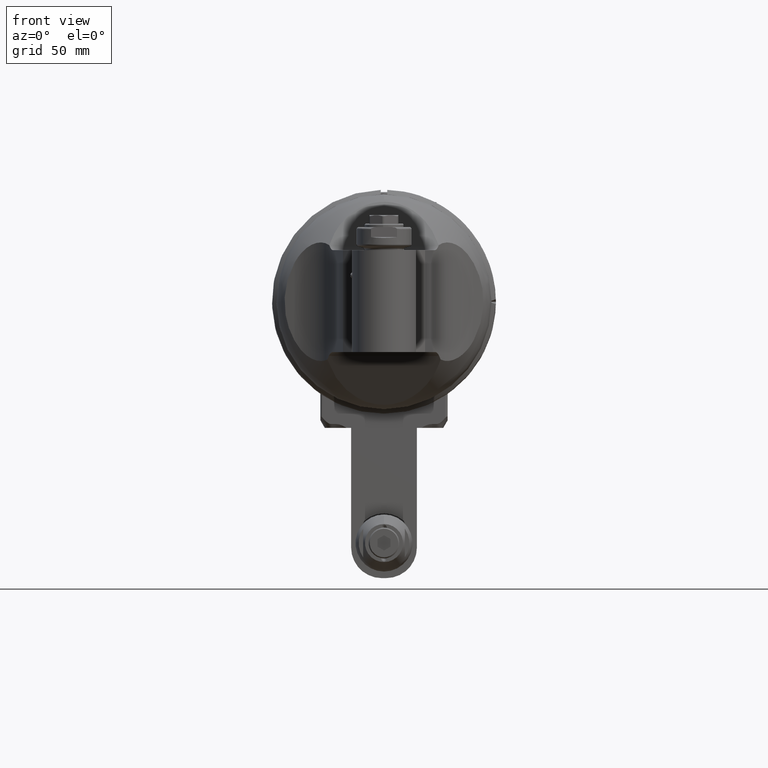
[diagram: clean part render]
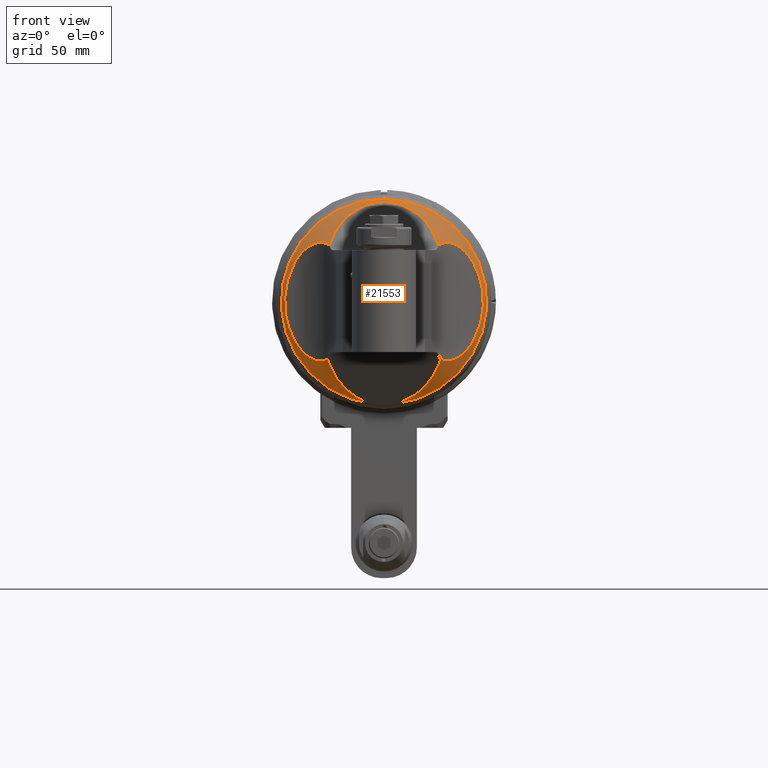
[diagram: same view with one face highlighted and labeled with its STEP entity id]
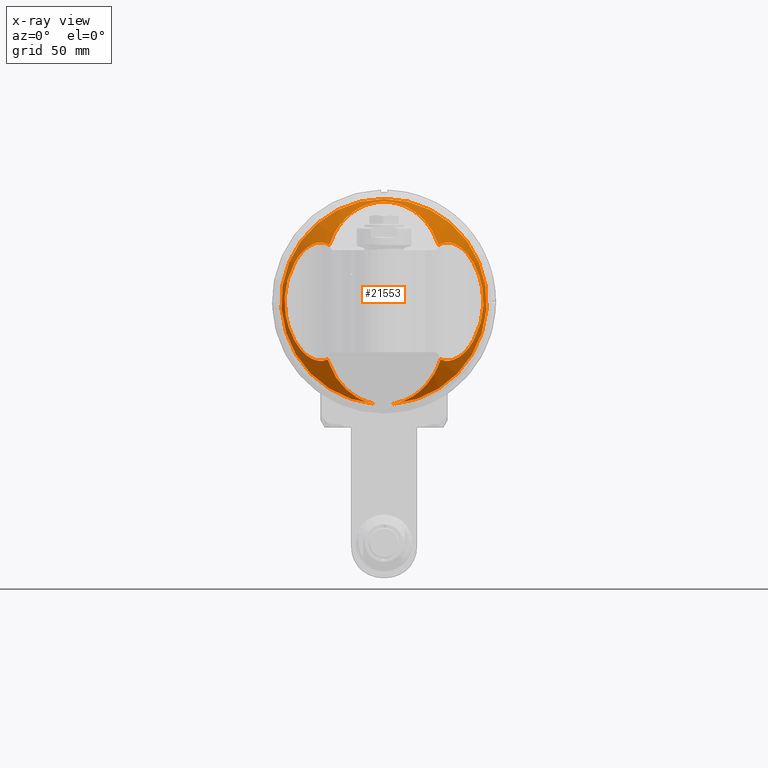
[diagram: x-ray of the same camera — body ghosted, the highlighted face saturated]
A machine part, front view. The second image highlights one B-rep face of the part: STEP entity #21553.
The next image is the same camera in x-ray: the body ghosted, the highlighted face saturated — about 0% of this face is hidden behind the body in this view.
In plain terms, the highlighted conical surface has half-angle 35 deg.
Its self-contained STEP definition (entity closure, byte-faithful):
#8532=CARTESIAN_POINT('',(0.E0,9.690066823034E1,0.E0));
#8533=DIRECTION('',(0.E0,1.E0,0.E0));
#8534=DIRECTION('',(-9.073475048637E-2,0.E0,-9.958750951069E-1));
#8535=AXIS2_PLACEMENT_3D('',#8532,#8533,#8534);
#8555=CARTESIAN_POINT('',(0.E0,9.690066823034E1,0.E0));
#8556=DIRECTION('',(0.E0,1.E0,0.E0));
#8557=DIRECTION('',(0.E0,0.E0,1.E0));
#8558=AXIS2_PLACEMENT_3D('',#8555,#8556,#8557);
#8560=CARTESIAN_POINT('',(4.249092444111E0,9.690066823034E1,-4.663665595912E1));
#8561=CARTESIAN_POINT('',(5.030448431946E0,9.680248086063E1,-4.649642986279E1));
#8562=CARTESIAN_POINT('',(6.517121420075E0,9.656070736877E1,-4.615114153230E1));
#8563=CARTESIAN_POINT('',(9.246733394353E0,9.593164004109E1,-4.525274028218E1));
#8564=CARTESIAN_POINT('',(1.227895160857E1,9.491854985333E1,-4.380589754987E1));
#8565=CARTESIAN_POINT('',(1.545051026041E1,9.342395965614E1,-4.167140153887E1));
#8566=CARTESIAN_POINT('',(1.822618219256E1,9.169300698534E1,-3.919934493229E1));
#8567=CARTESIAN_POINT('',(2.064616095909E1,8.974968923054E1,-3.642399955431E1));
#8568=CARTESIAN_POINT('',(2.272930497598E1,8.760526572841E1,-3.336144540413E1));
#8569=CARTESIAN_POINT('',(2.447852888964E1,8.526147665611E1,-3.001416771230E1));
#8570=CARTESIAN_POINT('',(2.541380374861E1,8.356110802432E1,-2.758578964008E1));
#8571=CARTESIAN_POINT('',(2.581853261668E1,8.267336442076E1,-2.631796038216E1));
#8581=CARTESIAN_POINT('',(-2.581853261668E1,8.267336442076E1,
-2.631796038216E1));
#8582=CARTESIAN_POINT('',(-2.541380374861E1,8.356110802431E1,
-2.758578964007E1));
#8583=CARTESIAN_POINT('',(-2.447852888965E1,8.526147665609E1,
-3.001416771227E1));
#8584=CARTESIAN_POINT('',(-2.272930497602E1,8.760526572837E1,
-3.336144540408E1));
#8585=CARTESIAN_POINT('',(-2.064616095914E1,8.974968923049E1,
-3.642399955424E1));
#8586=CARTESIAN_POINT('',(-1.822618219264E1,9.169300698528E1,
-3.919934493220E1));
#8587=CARTESIAN_POINT('',(-1.545051026052E1,9.342395965608E1,
-4.167140153878E1));
#8588=CARTESIAN_POINT('',(-1.227895160872E1,9.491854985327E1,
-4.380589754979E1));
#8589=CARTESIAN_POINT('',(-9.246733394536E0,9.593164004104E1,
-4.525274028210E1));
#8590=CARTESIAN_POINT('',(-6.517121420290E0,9.656070736873E1,
-4.615114153224E1));
#8591=CARTESIAN_POINT('',(-5.030448432179E0,9.680248086060E1,
-4.649642986274E1));
#8592=CARTESIAN_POINT('',(-4.249092444353E0,9.690066823031E1,
-4.663665595908E1));
#8598=CARTESIAN_POINT('',(2.494381098088E1,8.123576313169E1,2.576485296668E1));
#8603=CARTESIAN_POINT('',(4.085173814904E1,9.356092673678E1,1.762419830510E1));
#8604=CARTESIAN_POINT('',(4.062562835073E1,9.350034079892E1,1.804121218561E1));
#8605=CARTESIAN_POINT('',(4.016706095814E1,9.337090226071E1,1.883740159886E1));
#8606=CARTESIAN_POINT('',(3.946804620323E1,9.315234458695E1,1.992194011385E1));
#8607=CARTESIAN_POINT('',(3.876513018210E1,9.291043229617E1,2.090124374299E1));
#8608=CARTESIAN_POINT('',(3.806015324157E1,9.264487401504E1,2.178588504741E1));
#8609=CARTESIAN_POINT('',(3.735711723502E1,9.235636454568E1,2.258138469142E1));
#8610=CARTESIAN_POINT('',(3.666082460929E1,9.204650866417E1,2.329208150661E1));
#8611=CARTESIAN_POINT('',(3.596979431870E1,9.171434837636E1,2.392754254313E1));
#8612=CARTESIAN_POINT('',(3.528583152421E1,9.136029901221E1,2.449232186675E1));
#8613=CARTESIAN_POINT('',(3.461175494974E1,9.098564310621E1,2.498992175326E1));
#8614=CARTESIAN_POINT('',(3.394491254279E1,9.058864162784E1,2.542703523385E1));
#8615=CARTESIAN_POINT('',(3.328479021329E1,9.016834056413E1,2.580731231949E1));
#8616=CARTESIAN_POINT('',(3.263353842995E1,8.972549469027E1,2.613245346057E1));
#8617=CARTESIAN_POINT('',(3.199045679311E1,8.925904635786E1,2.640542006056E1));
#8618=CARTESIAN_POINT('',(3.135237207576E1,8.876558101386E1,2.662902997523E1));
#8619=CARTESIAN_POINT('',(3.072173817698E1,8.824557199806E1,2.680326906221E1));
#8620=CARTESIAN_POINT('',(3.010026279669E1,8.769926274424E1,2.692875301393E1));
#8621=CARTESIAN_POINT('',(2.948373605846E1,8.712120800990E1,2.700652129890E1));
#8622=CARTESIAN_POINT('',(2.887290042658E1,8.650952637712E1,2.703557547442E1));
#8623=CARTESIAN_POINT('',(2.826947869233E1,8.586327745621E1,2.701483691901E1));
#8624=CARTESIAN_POINT('',(2.767184461742E1,8.517729136864E1,2.694238138954E1));
#8625=CARTESIAN_POINT('',(2.708517657687E1,8.445354976140E1,2.681640369010E1));
#8626=CARTESIAN_POINT('',(2.651588258846E1,8.369686832659E1,2.663677536387E1));
#8627=CARTESIAN_POINT('',(2.596615701488E1,8.290750943405E1,2.640302194331E1));
#8628=CARTESIAN_POINT('',(2.543881765055E1,8.208658621264E1,2.611472348622E1));
#8629=CARTESIAN_POINT('',(2.510570374618E1,8.152232415458E1,2.588739950966E1));
#8630=CARTESIAN_POINT('',(2.494381098088E1,8.123576313169E1,2.576485296668E1));
#8636=CARTESIAN_POINT('',(2.581853261668E1,8.267336442075E1,-2.631796038215E1));
#8637=CARTESIAN_POINT('',(2.600089675383E1,8.295232952852E1,-2.641269161959E1));
#8638=CARTESIAN_POINT('',(2.637224144555E1,8.349697102564E1,-2.658216944061E1));
#8639=CARTESIAN_POINT('',(2.694642496076E1,8.427455907316E1,-2.677829097124E1));
#8640=CARTESIAN_POINT('',(2.753306631864E1,8.501089646185E1,-2.691774919230E1));
#8641=CARTESIAN_POINT('',(2.813210339830E1,8.570998776708E1,-2.700307377172E1));
#8642=CARTESIAN_POINT('',(2.874159900251E1,8.637278381847E1,-2.703555285368E1));
#8643=CARTESIAN_POINT('',(2.935712167200E1,8.699785930198E1,-2.701670539656E1));
#8644=CARTESIAN_POINT('',(2.998006550066E1,8.758967646447E1,-2.694786308371E1));
#8645=CARTESIAN_POINT('',(3.061025607780E1,8.815027815417E1,-2.682939566671E1));
#8646=CARTESIAN_POINT('',(3.124520293899E1,8.867962495870E1,-2.666205431091E1));
#8647=CARTESIAN_POINT('',(3.188815701959E1,8.918217200666E1,-2.644463990745E1));
#8648=CARTESIAN_POINT('',(3.253937923764E1,8.965918331639E1,-2.617561321104E1));
#8649=CARTESIAN_POINT('',(3.319626527862E1,9.010991154888E1,-2.585455900659E1));
#8650=CARTESIAN_POINT('',(3.386175343272E1,9.053732861224E1,-2.547798849800E1));
#8651=CARTESIAN_POINT('',(3.453665635326E1,9.094239002656E1,-2.504210227726E1));
#8652=CARTESIAN_POINT('',(3.521808374373E1,9.132391309252E1,-2.454514738025E1));
#8653=CARTESIAN_POINT('',(3.590844376967E1,9.168373297017E1,-2.398099903544E1));
#8654=CARTESIAN_POINT('',(3.660784111553E1,9.202203295628E1,-2.334351111758E1));
#8655=CARTESIAN_POINT('',(3.731250168742E1,9.233733652051E1,-2.262946021255E1));
#8656=CARTESIAN_POINT('',(3.802362525016E1,9.263057313999E1,-2.182963190669E1));
#8657=CARTESIAN_POINT('',(3.873793428628E1,9.290072067110E1,-2.093753319969E1));
#8658=CARTESIAN_POINT('',(3.944999363875E1,9.314650611028E1,-1.994888613380E1));
#8659=CARTESIAN_POINT('',(4.015808411085E1,9.336832373480E1,-1.885265644380E1));
#8660=CARTESIAN_POINT('',(4.062268781233E1,9.349955288403E1,-1.804663541491E1));
#8661=CARTESIAN_POINT('',(4.085173814823E1,9.356092673656E1,-1.762419830655E1));
#8950=CARTESIAN_POINT('',(-4.085173814931E1,9.356092673687E1,
-1.762419830494E1));
#8951=CARTESIAN_POINT('',(-4.062269592271E1,9.349955505721E1,
-1.804662045753E1));
#8952=CARTESIAN_POINT('',(-4.015810723959E1,9.336833047069E1,
-1.885261771234E1));
#8953=CARTESIAN_POINT('',(-3.945002554676E1,9.314651652932E1,
-1.994883899385E1));
#8954=CARTESIAN_POINT('',(-3.873798042714E1,9.290073709399E1,
-2.093747143629E1));
#8955=CARTESIAN_POINT('',(-3.802368956461E1,9.263059858908E1,
-2.182955585095E1));
#8956=CARTESIAN_POINT('',(-3.731254812251E1,9.233735656941E1,
-2.262941096585E1));
#8957=CARTESIAN_POINT('',(-3.660789908355E1,9.202205971110E1,
-2.334345480346E1));
#8958=CARTESIAN_POINT('',(-3.590849652289E1,9.168376000809E1,
-2.398095484398E1));
#8959=CARTESIAN_POINT('',(-3.521808795017E1,9.132391541946E1,
-2.454514425932E1));
#8960=CARTESIAN_POINT('',(-3.453670635980E1,9.094241830822E1,
-2.504206645186E1));
#8961=CARTESIAN_POINT('',(-3.386181310590E1,9.053736620203E1,
-2.547795340376E1));
#8962=CARTESIAN_POINT('',(-3.319627790244E1,9.010992005436E1,
-2.585455257305E1));
#8963=CARTESIAN_POINT('',(-3.253942815670E1,8.965921735078E1,
-2.617559011358E1));
#8964=CARTESIAN_POINT('',(-3.188820200295E1,8.918220699226E1,
-2.644462446661E1));
#8965=CARTESIAN_POINT('',(-3.124518104170E1,8.867960762763E1,
-2.666206138684E1));
#8966=CARTESIAN_POINT('',(-3.061027770834E1,8.815029555518E1,
-2.682938911873E1));
#8967=CARTESIAN_POINT('',(-2.998012389436E1,8.758973017173E1,
-2.694785440365E1));
#8968=CARTESIAN_POINT('',(-2.935716725347E1,8.699790368741E1,
-2.701670170976E1));
#8969=CARTESIAN_POINT('',(-2.874169598035E1,8.637288438822E1,
-2.703555237433E1));
#8970=CARTESIAN_POINT('',(-2.813221929925E1,8.571011866234E1,
-2.700308546336E1));
#8971=CARTESIAN_POINT('',(-2.753314978836E1,8.501099809471E1,
-2.691776569338E1));
#8972=CARTESIAN_POINT('',(-2.694649724561E1,8.427465368575E1,
-2.677831225644E1));
#8973=CARTESIAN_POINT('',(-2.637228470981E1,8.349703329590E1,
-2.658218800111E1));
#8974=CARTESIAN_POINT('',(-2.600091224224E1,8.295235322138E1,
-2.641269966524E1));
#8975=CARTESIAN_POINT('',(-2.581853261668E1,8.267336442076E1,
-2.631796038216E1));
#8981=CARTESIAN_POINT('',(-2.494381098088E1,8.123576313169E1,2.576485296668E1));
#8982=CARTESIAN_POINT('',(-2.510567270018E1,8.152226920108E1,2.588737600904E1));
#8983=CARTESIAN_POINT('',(-2.543872220432E1,8.208642643110E1,2.611466019256E1));
#8984=CARTESIAN_POINT('',(-2.596594506380E1,8.290718901808E1,2.640291558184E1));
#8985=CARTESIAN_POINT('',(-2.651557610679E1,8.369644136446E1,2.663665838162E1));
#8986=CARTESIAN_POINT('',(-2.708473298944E1,8.445297853782E1,2.681628288882E1));
#8987=CARTESIAN_POINT('',(-2.767133975910E1,8.517669160509E1,2.694229781063E1));
#8988=CARTESIAN_POINT('',(-2.826903749528E1,8.586279063559E1,2.701480533306E1));
#8989=CARTESIAN_POINT('',(-2.887251392174E1,8.650912719959E1,2.703557933544E1));
#8990=CARTESIAN_POINT('',(-2.948339770344E1,8.712088220479E1,2.700655322826E1));
#8991=CARTESIAN_POINT('',(-3.010002899218E1,8.769905189523E1,2.692879318469E1));
#8992=CARTESIAN_POINT('',(-3.072150211219E1,8.824537015049E1,2.680332432406E1));
#8993=CARTESIAN_POINT('',(-3.135208486486E1,8.876535134202E1,2.662911943076E1));
#8994=CARTESIAN_POINT('',(-3.199021083962E1,8.925886411394E1,2.640551835780E1));
#8995=CARTESIAN_POINT('',(-3.263340814951E1,8.972540342561E1,2.613251398398E1));
#8996=CARTESIAN_POINT('',(-3.328456751321E1,9.016819251342E1,2.580742927589E1));
#8997=CARTESIAN_POINT('',(-3.394468248691E1,9.058850157957E1,2.542717986920E1));
#8998=CARTESIAN_POINT('',(-3.461166043486E1,9.098558918881E1,2.498998849956E1));
#8999=CARTESIAN_POINT('',(-3.528564768924E1,9.136019898966E1,2.449246229908E1));
#9000=CARTESIAN_POINT('',(-3.596957728636E1,9.171424061724E1,2.392773298949E1));
#9001=CARTESIAN_POINT('',(-3.666066846808E1,9.204643679918E1,2.329223384397E1));
#9002=CARTESIAN_POINT('',(-3.735694109900E1,9.235628879081E1,2.258157245407E1));
#9003=CARTESIAN_POINT('',(-3.805996700166E1,9.264480120318E1,2.178610847495E1));
#9004=CARTESIAN_POINT('',(-3.876501089860E1,9.291038989889E1,2.090140372140E1));
#9005=CARTESIAN_POINT('',(-3.946794951377E1,9.315231302798E1,1.992208305867E1));
#9006=CARTESIAN_POINT('',(-4.016699960341E1,9.337088452229E1,1.883750509310E1));
#9007=CARTESIAN_POINT('',(-4.062560663038E1,9.350033497897E1,1.804125224440E1));
#9008=CARTESIAN_POINT('',(-4.085173814904E1,9.356092673678E1,1.762419830511E1));
#9053=CARTESIAN_POINT('',(-4.085173814786E1,9.356092673646E1,1.762419830723E1));
#9054=CARTESIAN_POINT('',(-4.164807533483E1,9.377430464261E1,1.615551511492E1));
#9055=CARTESIAN_POINT('',(-4.298745689670E1,9.413319085047E1,1.321814873031E1));
#9056=CARTESIAN_POINT('',(-4.435783893291E1,9.450038361040E1,8.812099153406E0));
#9057=CARTESIAN_POINT('',(-4.515675684573E1,9.471445301996E1,4.406049576504E0));
#9058=CARTESIAN_POINT('',(-4.541943562241E1,9.478483758604E1,
-3.912805635053E-10));
#9059=CARTESIAN_POINT('',(-4.515675684564E1,9.471445301993E1,
-4.406049577281E0));
#9060=CARTESIAN_POINT('',(-4.435783893273E1,9.450038361035E1,
-8.812099154165E0));
#9061=CARTESIAN_POINT('',(-4.298745689642E1,9.413319085040E1,
-1.321814873104E1));
#9062=CARTESIAN_POINT('',(-4.164807533449E1,9.377430464252E1,
-1.615551511562E1));
#9063=CARTESIAN_POINT('',(-4.085173814749E1,9.356092673636E1,
-1.762419830791E1));
#9065=CARTESIAN_POINT('',(2.494381098088E1,8.123576313169E1,2.576485296668E1));
#9066=CARTESIAN_POINT('',(2.468397961649E1,8.179038445934E1,2.655693431026E1));
#9067=CARTESIAN_POINT('',(2.416431688772E1,8.276562432251E1,2.794972117695E1));
#9068=CARTESIAN_POINT('',(2.338482279457E1,8.399279522989E1,2.970230286225E1));
#9069=CARTESIAN_POINT('',(2.260532870142E1,8.505635908145E1,3.122122945691E1));
#9070=CARTESIAN_POINT('',(2.156600324388E1,8.631166721412E1,3.301399526442E1));
#9071=CARTESIAN_POINT('',(2.026684642196E1,8.764264142922E1,3.491482343675E1));
#9072=CARTESIAN_POINT('',(1.870785823566E1,8.897751755566E1,3.682122411597E1));
#9073=CARTESIAN_POINT('',(1.714887004935E1,9.011136389608E1,3.844052450699E1));
#9074=CARTESIAN_POINT('',(1.507021913428E1,9.140658600784E1,4.029029338419E1));
#9075=CARTESIAN_POINT('',(1.247190549044E1,9.268621112774E1,4.211778744855E1));
#9076=CARTESIAN_POINT('',(9.353929117828E0,9.380251194768E1,4.371203023946E1));
#9077=CARTESIAN_POINT('',(6.235952745219E0,9.456395985625E1,4.479949055234E1));
#9078=CARTESIAN_POINT('',(3.117976372609E0,9.500807459994E1,4.543375213830E1));
#9079=CARTESIAN_POINT('',(-3.420597138870E-13,9.515409766665E1,
4.564229468996E1));
#9080=CARTESIAN_POINT('',(-3.117976372610E0,9.500807459994E1,4.543375213830E1));
#9081=CARTESIAN_POINT('',(-6.235952745219E0,9.456395985625E1,4.479949055234E1));
#9082=CARTESIAN_POINT('',(-9.353929117829E0,9.380251194767E1,4.371203023946E1));
#9083=CARTESIAN_POINT('',(-1.247190549044E1,9.268621112774E1,4.211778744855E1));
#9084=CARTESIAN_POINT('',(-1.507021913428E1,9.140658600784E1,4.029029338419E1));
#9085=CARTESIAN_POINT('',(-1.714887004935E1,9.011136389608E1,3.844052450699E1));
#9086=CARTESIAN_POINT('',(-1.870785823566E1,8.897751755566E1,3.682122411597E1));
#9087=CARTESIAN_POINT('',(-2.026684642196E1,8.764264142922E1,3.491482343675E1));
#9088=CARTESIAN_POINT('',(-2.156600324388E1,8.631166721412E1,3.301399526442E1));
#9089=CARTESIAN_POINT('',(-2.260532870142E1,8.505635908145E1,3.122122945691E1));
#9090=CARTESIAN_POINT('',(-2.338482279457E1,8.399279522988E1,2.970230286225E1));
#9091=CARTESIAN_POINT('',(-2.416431688772E1,8.276562432251E1,2.794972117695E1));
#9092=CARTESIAN_POINT('',(-2.468397961649E1,8.179038445934E1,2.655693431026E1));
#9093=CARTESIAN_POINT('',(-2.494381098088E1,8.123576313169E1,2.576485296668E1));
#10491=CARTESIAN_POINT('',(4.085173814823E1,9.356092673656E1,
-1.762419830655E1));
#10492=CARTESIAN_POINT('',(4.164807533513E1,9.377430464269E1,
-1.615551511430E1));
#10493=CARTESIAN_POINT('',(4.298745689689E1,9.413319085052E1,
-1.321814872980E1));
#10494=CARTESIAN_POINT('',(4.435783893299E1,9.450038361042E1,
-8.812099153065E0));
#10495=CARTESIAN_POINT('',(4.515675684575E1,9.471445301996E1,
-4.406049576334E0));
#10496=CARTESIAN_POINT('',(4.541943562241E1,9.478483758603E1,
3.912772328363E-10));
#10497=CARTESIAN_POINT('',(4.515675684565E1,9.471445301993E1,4.406049577111E0));
#10498=CARTESIAN_POINT('',(4.435783893280E1,9.450038361037E1,8.812099153824E0));
#10499=CARTESIAN_POINT('',(4.298745689661E1,9.413319085045E1,1.321814873053E1));
#10500=CARTESIAN_POINT('',(4.164807533479E1,9.377430464260E1,1.615551511500E1));
#10501=CARTESIAN_POINT('',(4.085173814786E1,9.356092673646E1,1.762419830723E1));
#11166=VERTEX_POINT('',#8598);
#11167=VERTEX_POINT('',#8603);
#11168=CARTESIAN_POINT('',(4.085173814823E1,9.356092673656E1,
-1.762419830655E1));
#11169=VERTEX_POINT('',#11168);
#11170=VERTEX_POINT('',#8636);
#11175=CARTESIAN_POINT('',(-4.249092444183E0,9.690066823034E1,
-4.663665595911E1));
#11176=CARTESIAN_POINT('',(0.E0,9.690066823034E1,4.682982453147E1));
#11177=VERTEX_POINT('',#11175);
#11178=VERTEX_POINT('',#11176);
#11225=VERTEX_POINT('',#8581);
#11227=VERTEX_POINT('',#8560);
#11289=VERTEX_POINT('',#8950);
#11290=CARTESIAN_POINT('',(-4.085173814904E1,9.356092673678E1,
1.762419830511E1));
#11291=VERTEX_POINT('',#11290);
#11292=VERTEX_POINT('',#8981);
#21528=CARTESIAN_POINT('',(0.E0,8.906821568101E1,0.E0));
#21529=DIRECTION('',(0.E0,1.E0,0.E0));
#21530=DIRECTION('',(0.E0,0.E0,-1.E0));
#21531=AXIS2_PLACEMENT_3D('',#21528,#21529,#21530);
#21532=CONICAL_SURFACE('',#21531,4.134548221376E1,3.5E1);
#21533=ORIENTED_EDGE('',*,*,#21513,.T.);
#21535=ORIENTED_EDGE('',*,*,#21534,.T.);
#21537=ORIENTED_EDGE('',*,*,#21536,.T.);
#21539=ORIENTED_EDGE('',*,*,#21538,.T.);
#21541=ORIENTED_EDGE('',*,*,#21540,.T.);
#21543=ORIENTED_EDGE('',*,*,#21542,.T.);
#21545=ORIENTED_EDGE('',*,*,#21544,.T.);
#21547=ORIENTED_EDGE('',*,*,#21546,.T.);
#21548=ORIENTED_EDGE('',*,*,#21517,.T.);
#21549=ORIENTED_EDGE('',*,*,#21484,.T.);
#21550=ORIENTED_EDGE('',*,*,#21502,.T.);
#21551=EDGE_LOOP('',(#21533,#21535,#21537,#21539,#21541,#21543,#21545,#21547,
#21548,#21549,#21550));
#21552=FACE_OUTER_BOUND('',#21551,.F.);
#21553=ADVANCED_FACE('',(#21552),#21532,.T.);
#8536=CIRCLE('',#8535,4.682982453147E1);
#8559=CIRCLE('',#8558,4.682982453147E1);
#8572=B_SPLINE_CURVE_WITH_KNOTS('',3,(#8560,#8561,#8562,#8563,#8564,#8565,#8566,
#8567,#8568,#8569,#8570,#8571),.UNSPECIFIED.,.F.,.F.,(4,1,1,1,1,1,1,1,1,4),
(0.E0,6.25E-2,1.25E-1,2.5E-1,3.75E-1,5.E-1,6.25E-1,7.5E-1,8.75E-1,1.E0),
.UNSPECIFIED.);
#8593=B_SPLINE_CURVE_WITH_KNOTS('',3,(#8581,#8582,#8583,#8584,#8585,#8586,#8587,
#8588,#8589,#8590,#8591,#8592),.UNSPECIFIED.,.F.,.F.,(4,1,1,1,1,1,1,1,1,4),
(0.E0,1.25E-1,2.5E-1,3.75E-1,5.E-1,6.25E-1,7.5E-1,8.75E-1,9.375E-1,1.E0),
.UNSPECIFIED.);
#8631=B_SPLINE_CURVE_WITH_KNOTS('',3,(#8603,#8604,#8605,#8606,#8607,#8608,#8609,
#8610,#8611,#8612,#8613,#8614,#8615,#8616,#8617,#8618,#8619,#8620,#8621,#8622,
#8623,#8624,#8625,#8626,#8627,#8628,#8629,#8630),.UNSPECIFIED.,.F.,.F.,(4,1,1,1,
1,1,1,1,1,1,1,1,1,1,1,1,1,1,1,1,1,1,1,1,1,4),(0.E0,4.E-2,8.E-2,1.2E-1,1.6E-1,
2.E-1,2.4E-1,2.8E-1,3.2E-1,3.6E-1,4.E-1,4.4E-1,4.8E-1,5.2E-1,5.6E-1,6.E-1,
6.4E-1,6.8E-1,7.2E-1,7.6E-1,8.E-1,8.4E-1,8.8E-1,9.2E-1,9.6E-1,1.E0),
.UNSPECIFIED.);
#8662=B_SPLINE_CURVE_WITH_KNOTS('',3,(#8636,#8637,#8638,#8639,#8640,#8641,#8642,
#8643,#8644,#8645,#8646,#8647,#8648,#8649,#8650,#8651,#8652,#8653,#8654,#8655,
#8656,#8657,#8658,#8659,#8660,#8661),.UNSPECIFIED.,.F.,.F.,(4,1,1,1,1,1,1,1,1,1,
1,1,1,1,1,1,1,1,1,1,1,1,1,4),(0.E0,4.347826086957E-2,8.695652173913E-2,
1.304347826087E-1,1.739130434783E-1,2.173913043478E-1,2.608695652174E-1,
3.043478260870E-1,3.478260869565E-1,3.913043478261E-1,4.347826086957E-1,
4.782608695652E-1,5.217391304348E-1,5.652173913043E-1,6.086956521739E-1,
6.521739130435E-1,6.956521739130E-1,7.391304347826E-1,7.826086956522E-1,
8.260869565217E-1,8.695652173913E-1,9.130434782609E-1,9.565217391304E-1,1.E0),
.UNSPECIFIED.);
#8976=B_SPLINE_CURVE_WITH_KNOTS('',3,(#8950,#8951,#8952,#8953,#8954,#8955,#8956,
#8957,#8958,#8959,#8960,#8961,#8962,#8963,#8964,#8965,#8966,#8967,#8968,#8969,
#8970,#8971,#8972,#8973,#8974,#8975),.UNSPECIFIED.,.F.,.F.,(4,1,1,1,1,1,1,1,1,1,
1,1,1,1,1,1,1,1,1,1,1,1,1,4),(0.E0,4.347826086957E-2,8.695652173913E-2,
1.304347826087E-1,1.739130434783E-1,2.173913043478E-1,2.608695652174E-1,
3.043478260870E-1,3.478260869565E-1,3.913043478261E-1,4.347826086957E-1,
4.782608695652E-1,5.217391304348E-1,5.652173913043E-1,6.086956521739E-1,
6.521739130435E-1,6.956521739130E-1,7.391304347826E-1,7.826086956522E-1,
8.260869565217E-1,8.695652173913E-1,9.130434782609E-1,9.565217391304E-1,1.E0),
.UNSPECIFIED.);
#9009=B_SPLINE_CURVE_WITH_KNOTS('',3,(#8981,#8982,#8983,#8984,#8985,#8986,#8987,
#8988,#8989,#8990,#8991,#8992,#8993,#8994,#8995,#8996,#8997,#8998,#8999,#9000,
#9001,#9002,#9003,#9004,#9005,#9006,#9007,#9008),.UNSPECIFIED.,.F.,.F.,(4,1,1,1,
1,1,1,1,1,1,1,1,1,1,1,1,1,1,1,1,1,1,1,1,1,4),(0.E0,4.E-2,8.E-2,1.2E-1,1.6E-1,
2.E-1,2.4E-1,2.8E-1,3.2E-1,3.6E-1,4.E-1,4.4E-1,4.8E-1,5.2E-1,5.6E-1,6.E-1,
6.4E-1,6.8E-1,7.2E-1,7.6E-1,8.E-1,8.4E-1,8.8E-1,9.2E-1,9.6E-1,1.E0),
.UNSPECIFIED.);
#9064=B_SPLINE_CURVE_WITH_KNOTS('',3,(#9053,#9054,#9055,#9056,#9057,#9058,#9059,
#9060,#9061,#9062,#9063),.UNSPECIFIED.,.F.,.F.,(4,1,1,1,1,1,1,1,4),(0.E0,
1.25E-1,2.5E-1,3.75E-1,5.E-1,6.25E-1,7.5E-1,8.75E-1,1.E0),.UNSPECIFIED.);
#9094=B_SPLINE_CURVE_WITH_KNOTS('',3,(#9065,#9066,#9067,#9068,#9069,#9070,#9071,
#9072,#9073,#9074,#9075,#9076,#9077,#9078,#9079,#9080,#9081,#9082,#9083,#9084,
#9085,#9086,#9087,#9088,#9089,#9090,#9091,#9092,#9093),.UNSPECIFIED.,.F.,.F.,(4,
1,1,1,1,1,1,1,1,1,1,1,1,1,1,1,1,1,1,1,1,1,1,1,1,1,4),(0.E0,1.5625E-2,3.125E-2,
4.6875E-2,6.25E-2,9.375E-2,1.25E-1,1.5625E-1,1.875E-1,2.5E-1,3.125E-1,3.75E-1,
4.375E-1,5.E-1,5.625E-1,6.25E-1,6.875E-1,7.5E-1,8.125E-1,8.4375E-1,8.75E-1,
9.0625E-1,9.375E-1,9.53125E-1,9.6875E-1,9.84375E-1,1.E0),.UNSPECIFIED.);
#10502=B_SPLINE_CURVE_WITH_KNOTS('',3,(#10491,#10492,#10493,#10494,#10495,
#10496,#10497,#10498,#10499,#10500,#10501),.UNSPECIFIED.,.F.,.F.,(4,1,1,1,1,1,1,
1,4),(0.E0,1.25E-1,2.5E-1,3.75E-1,5.E-1,6.25E-1,7.5E-1,8.75E-1,1.E0),
.UNSPECIFIED.);
#21484=EDGE_CURVE('',#11177,#11178,#8536,.T.);
#21502=EDGE_CURVE('',#11178,#11227,#8559,.T.);
#21513=EDGE_CURVE('',#11227,#11170,#8572,.T.);
#21517=EDGE_CURVE('',#11225,#11177,#8593,.T.);
#21534=EDGE_CURVE('',#11170,#11169,#8662,.T.);
#21536=EDGE_CURVE('',#11169,#11167,#10502,.T.);
#21538=EDGE_CURVE('',#11167,#11166,#8631,.T.);
#21540=EDGE_CURVE('',#11166,#11292,#9094,.T.);
#21542=EDGE_CURVE('',#11292,#11291,#9009,.T.);
#21544=EDGE_CURVE('',#11291,#11289,#9064,.T.);
#21546=EDGE_CURVE('',#11289,#11225,#8976,.T.);